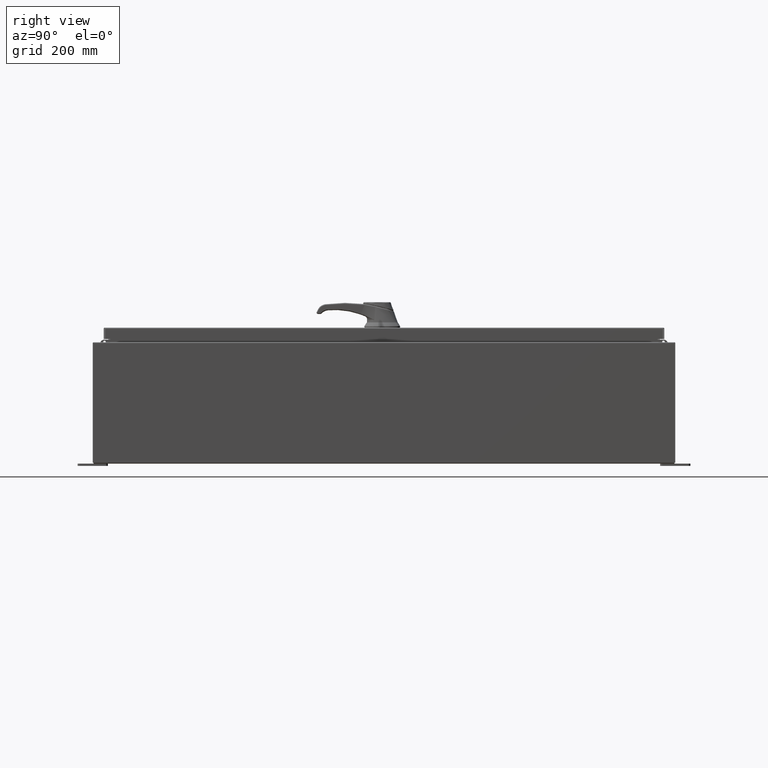
[diagram: clean part render]
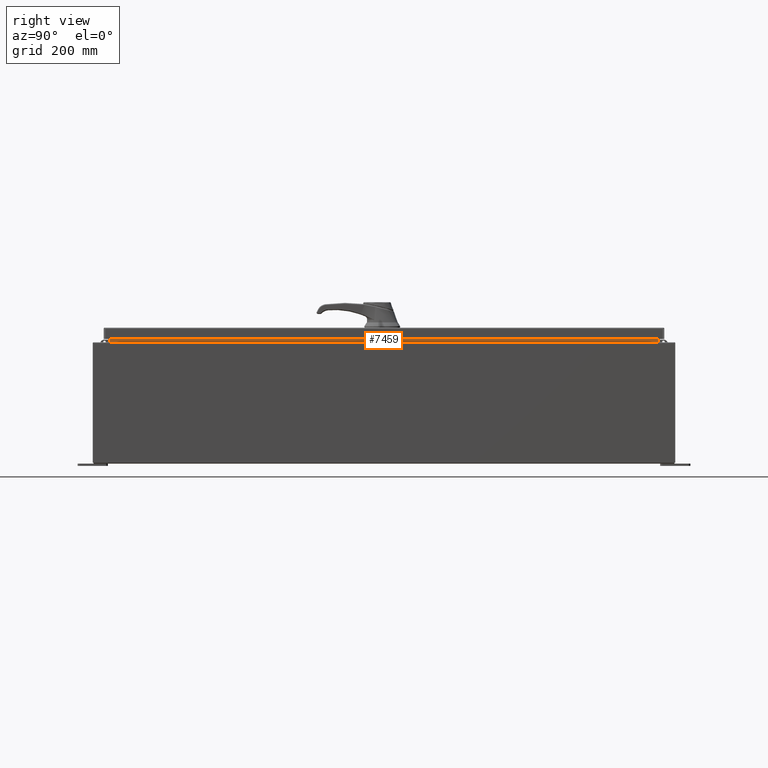
[diagram: same view with one face highlighted and labeled with its STEP entity id]
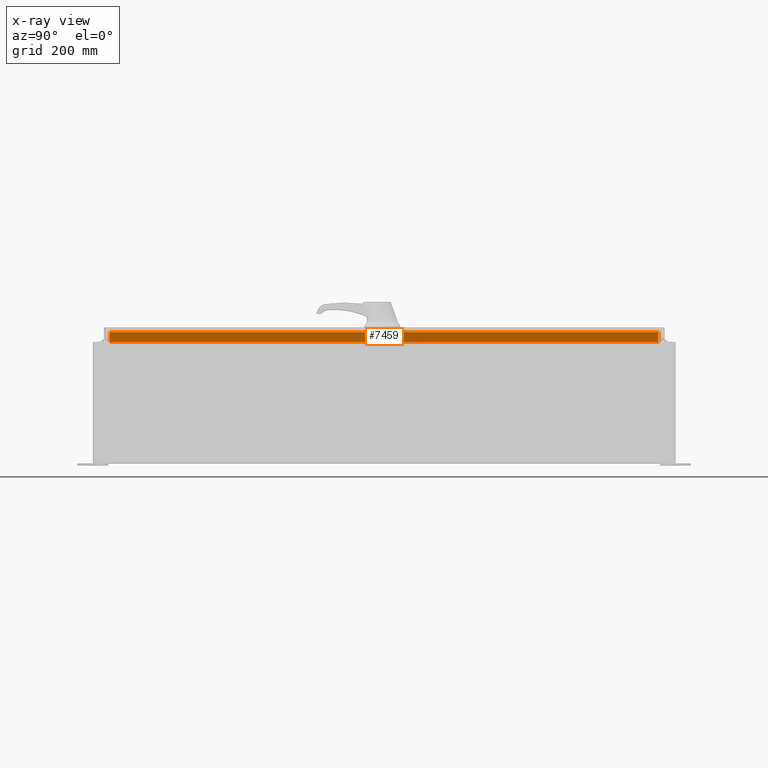
[diagram: x-ray of the same camera — body ghosted, the highlighted face saturated]
A machine part, right view. The second image highlights one B-rep face of the part: STEP entity #7459.
The next image is the same camera in x-ray: the body ghosted, the highlighted face saturated — about 0% of this face is hidden behind the body in this view.
In plain terms, the highlighted planar face has unit normal (1, 0, -0).
Its self-contained STEP definition (entity closure, byte-faithful):
#252 = EDGE_CURVE ( 'NONE', #111190, #53386, #92672, .T. ) ;
#3163 = CARTESIAN_POINT ( 'NONE',  ( 13.69970000000003400, 22.59374999999998200, 10.76290000000001100 ) ) ;
#6341 = FACE_OUTER_BOUND ( 'NONE', #94673, .T. ) ;
#7459 = ADVANCED_FACE ( 'NONE', ( #6341 ), #35429, .T. ) ;
#9921 = CARTESIAN_POINT ( 'NONE',  ( 13.69970000000003400, 22.59374999999997900, 9.938300000000010600 ) ) ;
#10214 = DIRECTION ( 'NONE',  ( 4.836466710774910500E-017, -1.000000000000000000, 9.672933421549820900E-017 ) ) ;
#10722 = VECTOR ( 'NONE', #10214, 39.37007874015748100 ) ;
#19057 = VECTOR ( 'NONE', #55787, 39.37007874015748100 ) ;
#24598 = ORIENTED_EDGE ( 'NONE', *, *, #34951, .F. ) ;
#30558 = LINE ( 'NONE', #119845, #54649 ) ;
#34951 = EDGE_CURVE ( 'NONE', #78133, #76228, #49529, .T. ) ;
#35429 = PLANE ( 'NONE',  #109027 ) ;
#36561 = CARTESIAN_POINT ( 'NONE',  ( 13.69970000000003600, 22.59374999999998200, 9.938300000000008800 ) ) ;
#42317 = DIRECTION ( 'NONE',  ( 1.000000000000000000, 0.0000000000000000000, -2.361913319930193300E-015 ) ) ;
#49529 = LINE ( 'NONE', #96816, #19057 ) ;
#53386 = VERTEX_POINT ( 'NONE', #95616 ) ;
#54649 = VECTOR ( 'NONE', #57718, 39.37007874015748100 ) ;
#55787 = DIRECTION ( 'NONE',  ( 0.0000000000000000000, 1.000000000000000000, 0.0000000000000000000 ) ) ;
#57718 = DIRECTION ( 'NONE',  ( 2.361913319930198800E-015, -0.0000000000000000000, 1.000000000000000000 ) ) ;
#70789 = ORIENTED_EDGE ( 'NONE', *, *, #97064, .F. ) ;
#74676 = ORIENTED_EDGE ( 'NONE', *, *, #252, .F. ) ;
#76228 = VERTEX_POINT ( 'NONE', #3163 ) ;
#78133 = VERTEX_POINT ( 'NONE', #125510 ) ;
#92672 = LINE ( 'NONE', #36561, #10722 ) ;
#94673 = EDGE_LOOP ( 'NONE', ( #106108, #24598, #70789, #74676 ) ) ;
#95616 = CARTESIAN_POINT ( 'NONE',  ( 13.69970000000003400, -22.59374999999997900, 9.938300000000010600 ) ) ;
#95754 = CARTESIAN_POINT ( 'NONE',  ( 13.69970000000001100, 0.0000000000000000000, -3.235750390904769000E-014 ) ) ;
#96816 = CARTESIAN_POINT ( 'NONE',  ( 13.69970000000003400, -22.59374999999997500, 10.76290000000001100 ) ) ;
#96878 = VECTOR ( 'NONE', #99175, 39.37007874015748100 ) ;
#97064 = EDGE_CURVE ( 'NONE', #53386, #78133, #30558, .T. ) ;
#99175 = DIRECTION ( 'NONE',  ( -2.361913319930193300E-015, -0.0000000000000000000, -1.000000000000000000 ) ) ;
#100082 = LINE ( 'NONE', #109990, #96878 ) ;
#106108 = ORIENTED_EDGE ( 'NONE', *, *, #128241, .F. ) ;
#109027 = AXIS2_PLACEMENT_3D ( 'NONE', #95754, #42317, #126344 ) ;
#109990 = CARTESIAN_POINT ( 'NONE',  ( 13.69970000000003400, 22.59374999999998200, 9.925300000000008900 ) ) ;
#111190 = VERTEX_POINT ( 'NONE', #9921 ) ;
#119845 = CARTESIAN_POINT ( 'NONE',  ( 13.69970000000003600, -22.59374999999997500, 10.85060000000001100 ) ) ;
#125510 = CARTESIAN_POINT ( 'NONE',  ( 13.69970000000003600, -22.59374999999997500, 10.76290000000001100 ) ) ;
#126344 = DIRECTION ( 'NONE',  ( -2.361913319930193300E-015, 0.0000000000000000000, -1.000000000000000000 ) ) ;
#128241 = EDGE_CURVE ( 'NONE', #76228, #111190, #100082, .T. ) ;